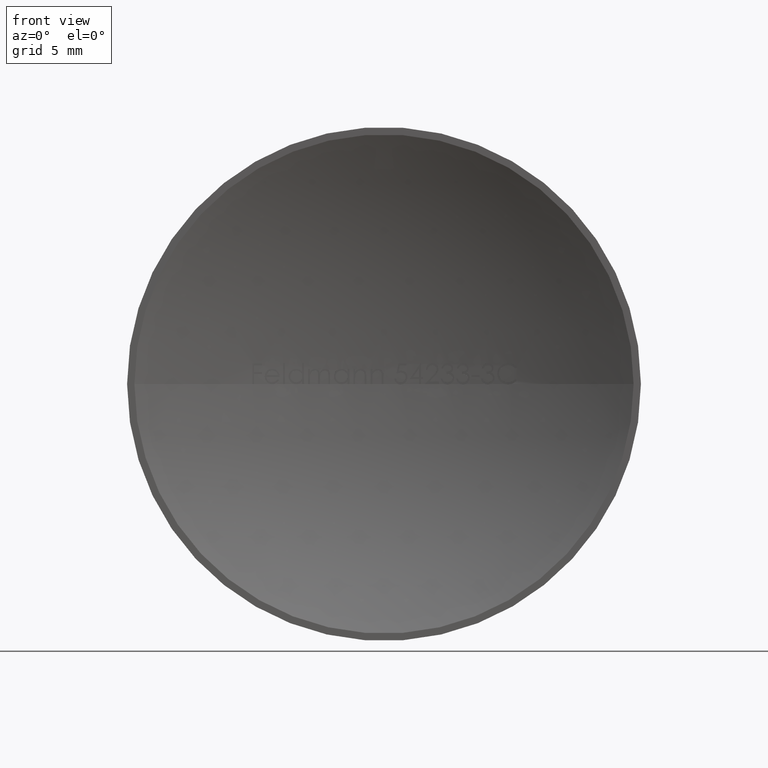
[diagram: clean part render]
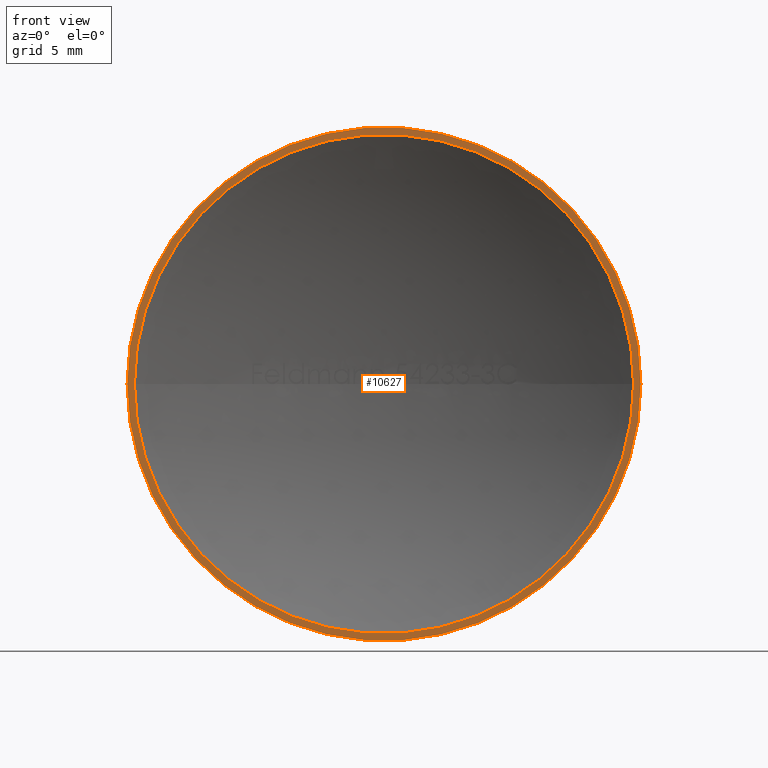
[diagram: same view with one face highlighted and labeled with its STEP entity id]
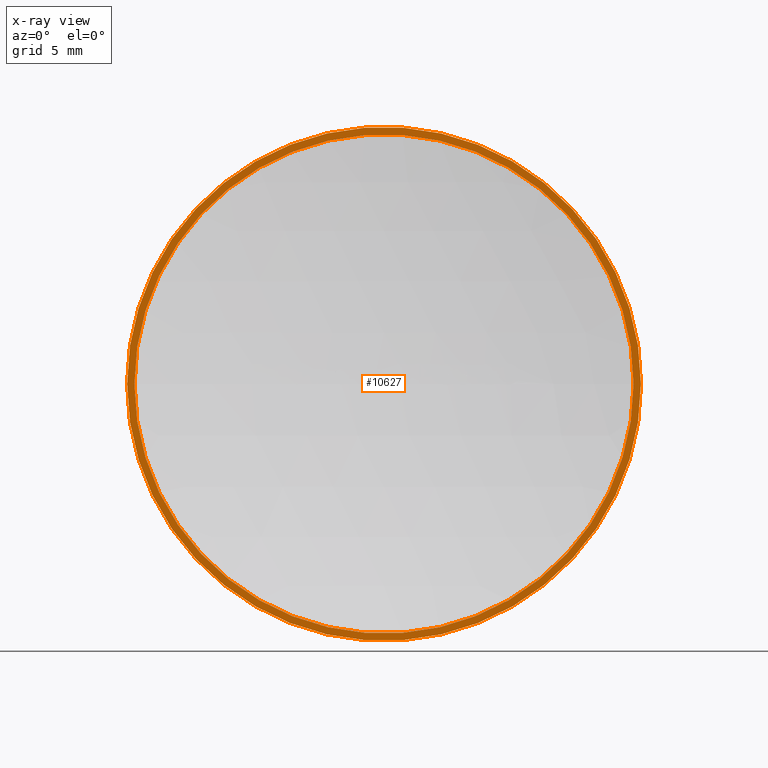
[diagram: x-ray of the same camera — body ghosted, the highlighted face saturated]
A machine part, front view. The second image highlights one B-rep face of the part: STEP entity #10627.
The next image is the same camera in x-ray: the body ghosted, the highlighted face saturated — about 0% of this face is hidden behind the body in this view.
In plain terms, the highlighted planar face has unit normal (-0, -1, 0).
Its self-contained STEP definition (entity closure, byte-faithful):
#131 = ORIENTED_EDGE ( 'NONE', *, *, #6693, .T. ) ;
#302 = ORIENTED_EDGE ( 'NONE', *, *, #11559, .F. ) ;
#457 = CARTESIAN_POINT ( 'NONE',  ( 16.36833833961164700, -5.876582875017628900E-017, -2.004543315496607100E-015 ) ) ;
#870 = CARTESIAN_POINT ( 'NONE',  ( -2.334441550613477400E-014, 9.367506770274758300E-014, 0.0000000000000000000 ) ) ;
#1018 = DIRECTION ( 'NONE',  ( 1.000000000000000000, -5.836103876533815000E-015, 0.0000000000000000000 ) ) ;
#1227 = DIRECTION ( 'NONE',  ( 1.000000000000000000, -5.836103876533815000E-015, 0.0000000000000000000 ) ) ;
#1876 = CARTESIAN_POINT ( 'NONE',  ( -16.36833833961147600, 1.926130716621757600E-013, 0.0000000000000000000 ) ) ;
#1927 = DIRECTION ( 'NONE',  ( 1.000000000000000000, -5.836103876533814200E-015, 0.0000000000000000000 ) ) ;
#1972 = CIRCLE ( 'NONE', #10238, 16.36833833961167200 ) ;
#1986 = CIRCLE ( 'NONE', #5562, 16.36833833961167200 ) ;
#2165 = EDGE_CURVE ( 'NONE', #9789, #6710, #9056, .T. ) ;
#2250 = VERTEX_POINT ( 'NONE', #457 ) ;
#2881 = PLANE ( 'NONE',  #6590 ) ;
#2882 = VERTEX_POINT ( 'NONE', #1876 ) ;
#4126 = FACE_OUTER_BOUND ( 'NONE', #4992, .T. ) ;
#4149 = CARTESIAN_POINT ( 'NONE',  ( -2.334441550613476100E-014, 9.540979117872439000E-014, 0.0000000000000000000 ) ) ;
#4231 = CIRCLE ( 'NONE', #9792, 16.85000000000002300 ) ;
#4554 = CARTESIAN_POINT ( 'NONE',  ( 16.84999999999999800, -4.663282616847321200E-015, 0.0000000000000000000 ) ) ;
#4819 = CARTESIAN_POINT ( 'NONE',  ( 16.84999999999999800, -3.484351683237712300E-015, 0.0000000000000000000 ) ) ;
#4992 = EDGE_LOOP ( 'NONE', ( #6027, #131 ) ) ;
#5068 = CARTESIAN_POINT ( 'NONE',  ( -16.85000000000004400, 1.920134180223424900E-013, 2.063529856563293800E-015 ) ) ;
#5562 = AXIS2_PLACEMENT_3D ( 'NONE', #10586, #6462, #1227 ) ;
#6027 = ORIENTED_EDGE ( 'NONE', *, *, #2165, .T. ) ;
#6045 = DIRECTION ( 'NONE',  ( -5.836103876533815000E-015, -1.000000000000000000, -0.0000000000000000000 ) ) ;
#6162 = DIRECTION ( 'NONE',  ( -5.836103876533815000E-015, -1.000000000000000000, -0.0000000000000000000 ) ) ;
#6462 = DIRECTION ( 'NONE',  ( -5.836103876533815000E-015, -1.000000000000000000, -0.0000000000000000000 ) ) ;
#6590 = AXIS2_PLACEMENT_3D ( 'NONE', #4819, #11110, #11030 ) ;
#6693 = EDGE_CURVE ( 'NONE', #6710, #9789, #4231, .T. ) ;
#6710 = VERTEX_POINT ( 'NONE', #5068 ) ;
#7093 = CARTESIAN_POINT ( 'NONE',  ( -2.334441550613477400E-014, 9.367506770274758300E-014, 0.0000000000000000000 ) ) ;
#8145 = DIRECTION ( 'NONE',  ( 1.000000000000000000, -5.836103876533814200E-015, 0.0000000000000000000 ) ) ;
#9056 = CIRCLE ( 'NONE', #13320, 16.85000000000002300 ) ;
#9789 = VERTEX_POINT ( 'NONE', #4554 ) ;
#9792 = AXIS2_PLACEMENT_3D ( 'NONE', #870, #6162, #8145 ) ;
#10238 = AXIS2_PLACEMENT_3D ( 'NONE', #4149, #11384, #1018 ) ;
#10586 = CARTESIAN_POINT ( 'NONE',  ( -2.334441550613476100E-014, 9.540979117872439000E-014, 0.0000000000000000000 ) ) ;
#10627 = ADVANCED_FACE ( 'NONE', ( #4126, #13208 ), #2881, .T. ) ;
#11030 = DIRECTION ( 'NONE',  ( 1.000000000000000000, -5.836103876533815000E-015, 0.0000000000000000000 ) ) ;
#11110 = DIRECTION ( 'NONE',  ( -5.836103876533815000E-015, -1.000000000000000000, 0.0000000000000000000 ) ) ;
#11384 = DIRECTION ( 'NONE',  ( -5.836103876533815000E-015, -1.000000000000000000, -0.0000000000000000000 ) ) ;
#11559 = EDGE_CURVE ( 'NONE', #2882, #2250, #1986, .T. ) ;
#11919 = EDGE_CURVE ( 'NONE', #2250, #2882, #1972, .T. ) ;
#12090 = ORIENTED_EDGE ( 'NONE', *, *, #11919, .F. ) ;
#12584 = EDGE_LOOP ( 'NONE', ( #302, #12090 ) ) ;
#13208 = FACE_BOUND ( 'NONE', #12584, .T. ) ;
#13320 = AXIS2_PLACEMENT_3D ( 'NONE', #7093, #6045, #1927 ) ;